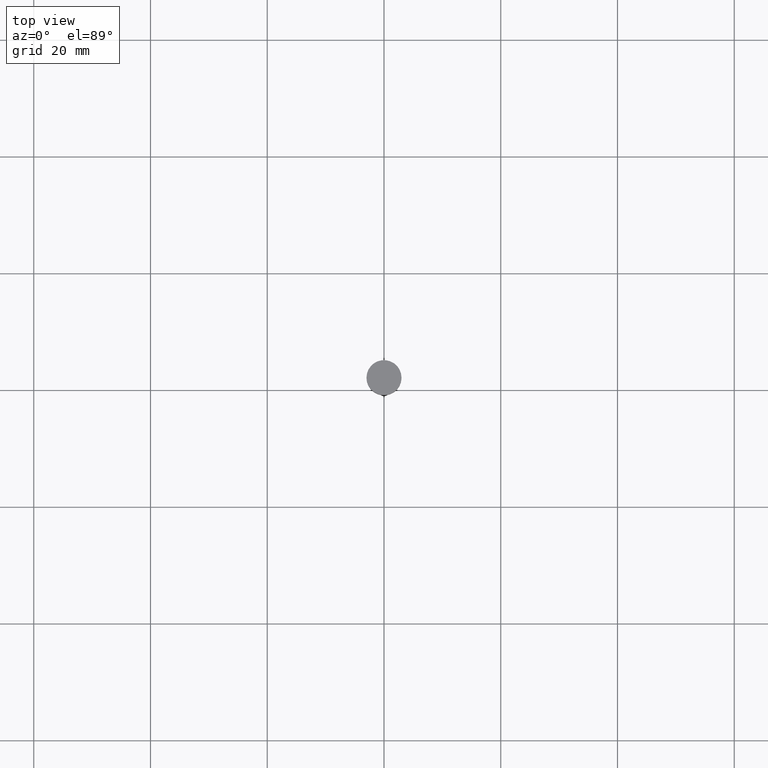
[diagram: clean part render]
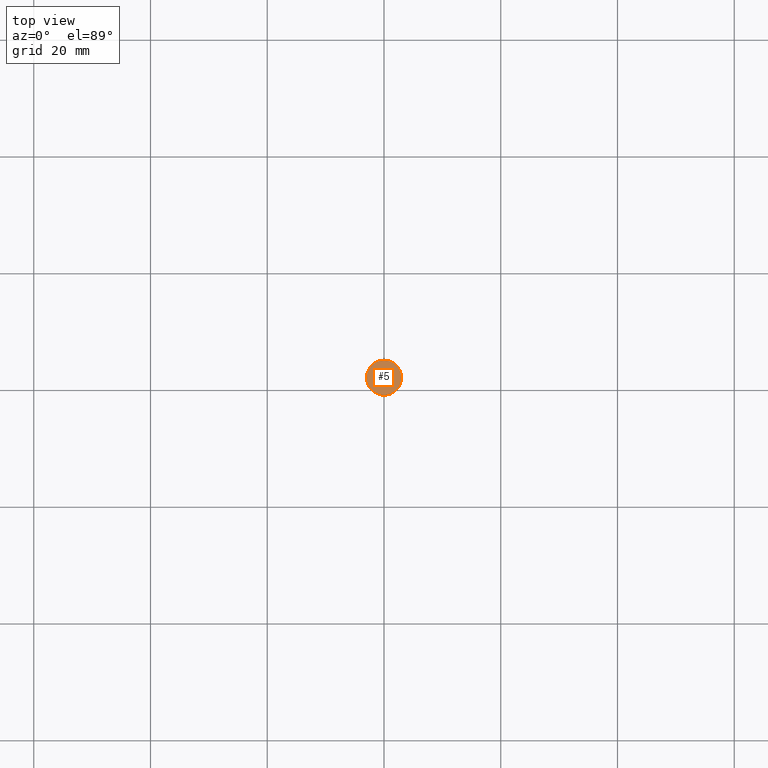
[diagram: same view with one face highlighted and labeled with its STEP entity id]
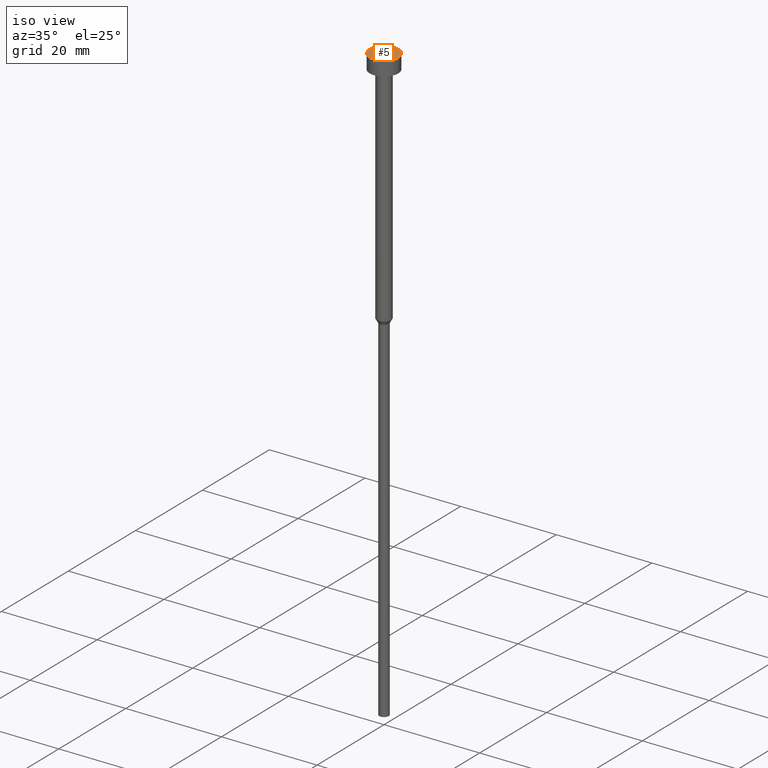
[diagram: same view with one face highlighted and labeled with its STEP entity id]
A machine part, top view. The second image highlights one B-rep face of the part: STEP entity #5.
A second angle (iso view) of the same face is appended — the face is thin or edge-on in the first view.
In plain terms, the highlighted planar face has unit normal (0, -0, 1).
Its self-contained STEP definition (entity closure, byte-faithful):
#5 = ADVANCED_FACE ( 'NONE', ( #221 ), #352, .T. ) ;
#23 = AXIS2_PLACEMENT_3D ( 'NONE', #228, #55, #304 ) ;
#26 = EDGE_LOOP ( 'NONE', ( #83, #44 ) ) ;
#36 = CIRCLE ( 'NONE', #23, 3.000000000000000000 ) ;
#38 = VERTEX_POINT ( 'NONE', #110 ) ;
#43 = CIRCLE ( 'NONE', #78, 3.000000000000000000 ) ;
#44 = ORIENTED_EDGE ( 'NONE', *, *, #269, .T. ) ;
#55 = DIRECTION ( 'NONE',  ( -0.000000000000000000, -0.000000000000000000, 1.000000000000000000 ) ) ;
#75 = EDGE_CURVE ( 'NONE', #38, #128, #36, .T. ) ;
#78 = AXIS2_PLACEMENT_3D ( 'NONE', #247, #334, #175 ) ;
#83 = ORIENTED_EDGE ( 'NONE', *, *, #75, .T. ) ;
#110 = CARTESIAN_POINT ( 'NONE',  ( 3.000000000000000000, 0.000000000000000000, -3.673940397442059868E-16 ) ) ;
#128 = VERTEX_POINT ( 'NONE', #252 ) ;
#161 = DIRECTION ( 'NONE',  ( 1.000000000000000000, 0.000000000000000000, 0.000000000000000000 ) ) ;
#175 = DIRECTION ( 'NONE',  ( 1.000000000000000000, 0.000000000000000000, 0.000000000000000000 ) ) ;
#196 = DIRECTION ( 'NONE',  ( 0.000000000000000000, -0.000000000000000000, 1.000000000000000000 ) ) ;
#221 = FACE_OUTER_BOUND ( 'NONE', #26, .T. ) ;
#228 = CARTESIAN_POINT ( 'NONE',  ( 0.000000000000000000, 0.000000000000000000, -3.673940397442059868E-16 ) ) ;
#247 = CARTESIAN_POINT ( 'NONE',  ( 0.000000000000000000, 0.000000000000000000, -3.673940397442059868E-16 ) ) ;
#252 = CARTESIAN_POINT ( 'NONE',  ( -3.000000000000000000, 3.673940397442059868E-16, -3.673940397442059868E-16 ) ) ;
#269 = EDGE_CURVE ( 'NONE', #128, #38, #43, .T. ) ;
#304 = DIRECTION ( 'NONE',  ( 1.000000000000000000, 0.000000000000000000, 0.000000000000000000 ) ) ;
#320 = CARTESIAN_POINT ( 'NONE',  ( 0.000000000000000000, 0.000000000000000000, -1.836970198721029934E-16 ) ) ;
#334 = DIRECTION ( 'NONE',  ( -0.000000000000000000, -0.000000000000000000, 1.000000000000000000 ) ) ;
#336 = AXIS2_PLACEMENT_3D ( 'NONE', #320, #196, #161 ) ;
#352 = PLANE ( 'NONE',  #336 ) ;